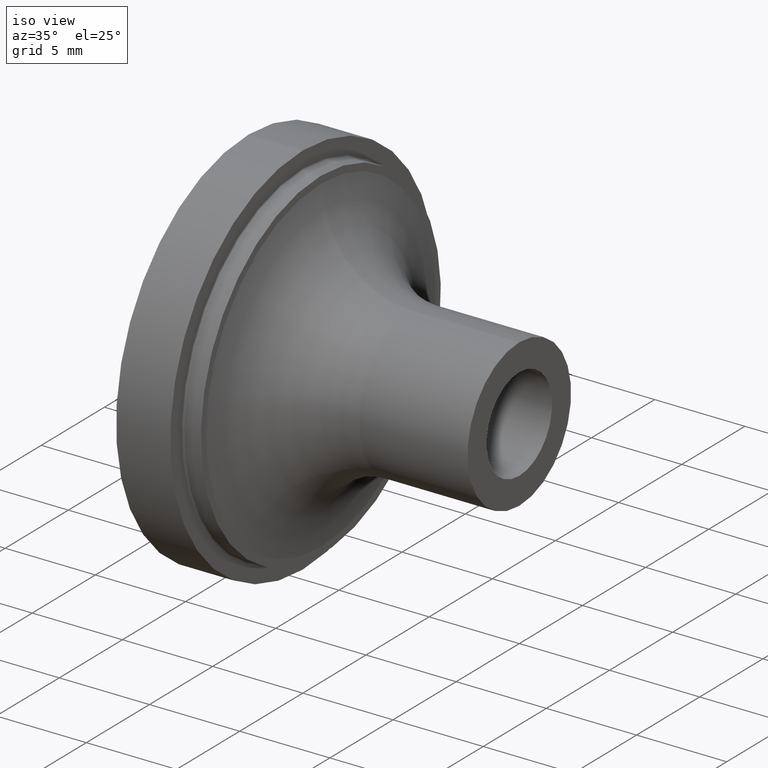
[diagram: clean part render]
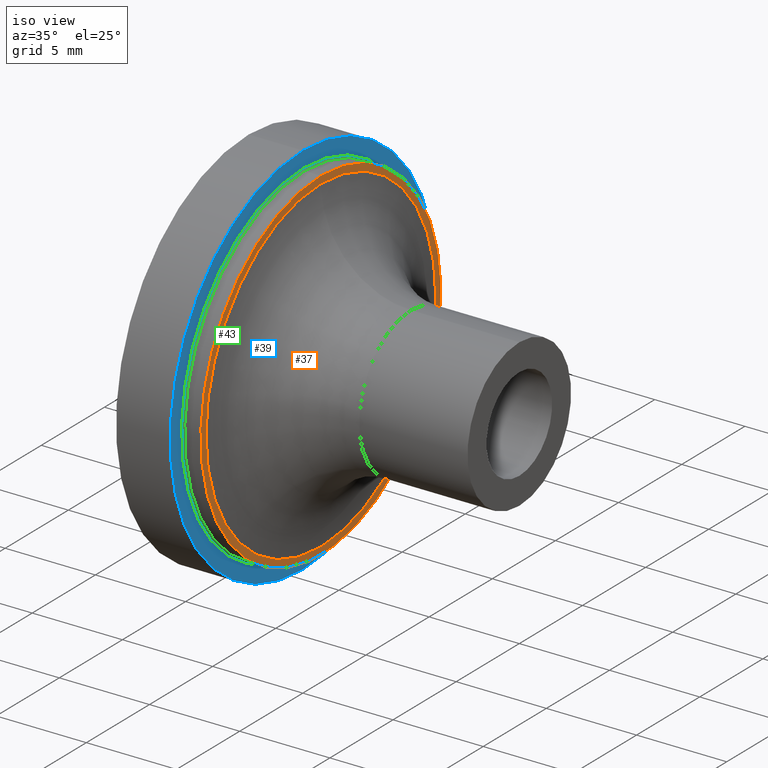
[diagram: same view with three faces highlighted in distinct colors, each labeled with its STEP entity id]
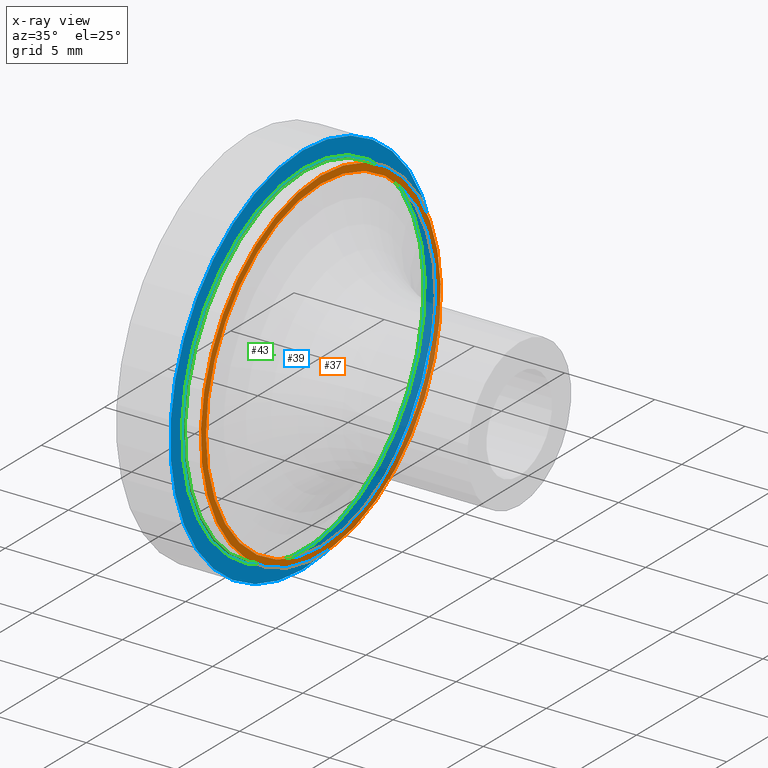
[diagram: x-ray of the same camera — body ghosted, the three highlighted faces saturated]
A machine part, iso view with three faces highlighted in distinct colors.
The next image is the same camera in x-ray (body ghosted, the three faces saturated) — at least one of them is partly hidden behind the body in this view.
Their STEP definitions:

[orange] entity #37 — the highlighted planar face has unit normal (-1, 0, 0).
#37 = ADVANCED_FACE( '', ( #80, #81 ), #82, .F. );
#80 = FACE_OUTER_BOUND( '', #139, .T. );
#81 = FACE_BOUND( '', #140, .T. );
#82 = PLANE( '', #141 );
#139 = EDGE_LOOP( '', ( #192 ) );
#140 = EDGE_LOOP( '', ( #193 ) );
#141 = AXIS2_PLACEMENT_3D( '', #194, #195, #196 );
#192 = ORIENTED_EDGE( '', *, *, #270, .F. );
#193 = ORIENTED_EDGE( '', *, *, #271, .T. );
#194 = CARTESIAN_POINT( '', ( 4.00000000000000, 0.000000000000000, 9.10000000000000 ) );
#195 = DIRECTION( '', ( -1.00000000000000, 0.000000000000000, 0.000000000000000 ) );
#196 = DIRECTION( '', ( 0.000000000000000, 0.000000000000000, 1.00000000000000 ) );
#270 = EDGE_CURVE( '', #296, #296, #297, .T. );
#271 = EDGE_CURVE( '', #298, #298, #299, .T. );
#296 = VERTEX_POINT( '', #335 );
#297 = CIRCLE( '', #336, 9.50000000000000 );
#298 = VERTEX_POINT( '', #337 );
#299 = CIRCLE( '', #338, 9.10000000000000 );
#335 = CARTESIAN_POINT( '', ( 4.00000000000000, 0.000000000000000, 9.50000000000000 ) );
#336 = AXIS2_PLACEMENT_3D( '', #373, #374, #375 );
#337 = CARTESIAN_POINT( '', ( 4.00000000000000, 0.000000000000000, 9.10000000000000 ) );
#338 = AXIS2_PLACEMENT_3D( '', #376, #377, #378 );
#373 = CARTESIAN_POINT( '', ( 4.00000000000000, 0.000000000000000, 0.000000000000000 ) );
#374 = DIRECTION( '', ( -1.00000000000000, 0.000000000000000, 0.000000000000000 ) );
#375 = DIRECTION( '', ( 0.000000000000000, 0.000000000000000, 1.00000000000000 ) );
#376 = CARTESIAN_POINT( '', ( 4.00000000000000, 0.000000000000000, 0.000000000000000 ) );
#377 = DIRECTION( '', ( -1.00000000000000, 0.000000000000000, 0.000000000000000 ) );
#378 = DIRECTION( '', ( 0.000000000000000, 0.000000000000000, 1.00000000000000 ) );

[blue] entity #39 — the highlighted planar face has unit normal (-1, 0, 0).
#39 = ADVANCED_FACE( '', ( #84, #85 ), #86, .F. );
#84 = FACE_OUTER_BOUND( '', #143, .T. );
#85 = FACE_BOUND( '', #144, .T. );
#86 = PLANE( '', #145 );
#143 = EDGE_LOOP( '', ( #198 ) );
#144 = EDGE_LOOP( '', ( #199 ) );
#145 = AXIS2_PLACEMENT_3D( '', #200, #201, #202 );
#198 = ORIENTED_EDGE( '', *, *, #273, .F. );
#199 = ORIENTED_EDGE( '', *, *, #274, .T. );
#200 = CARTESIAN_POINT( '', ( 3.00000000000000, 0.000000000000000, 9.50000000000000 ) );
#201 = DIRECTION( '', ( -1.00000000000000, 0.000000000000000, 0.000000000000000 ) );
#202 = DIRECTION( '', ( 0.000000000000000, 0.000000000000000, 1.00000000000000 ) );
#273 = EDGE_CURVE( '', #301, #301, #302, .T. );
#274 = EDGE_CURVE( '', #303, #303, #304, .T. );
#301 = VERTEX_POINT( '', #340 );
#302 = CIRCLE( '', #341, 10.5000000000000 );
#303 = VERTEX_POINT( '', #342 );
#304 = CIRCLE( '', #343, 9.60000000000000 );
#340 = CARTESIAN_POINT( '', ( 3.00000000000000, 0.000000000000000, 10.5000000000000 ) );
#341 = AXIS2_PLACEMENT_3D( '', #379, #380, #381 );
#342 = CARTESIAN_POINT( '', ( 3.00000000000000, 0.000000000000000, 9.60000000000000 ) );
#343 = AXIS2_PLACEMENT_3D( '', #382, #383, #384 );
#379 = CARTESIAN_POINT( '', ( 3.00000000000000, 0.000000000000000, 0.000000000000000 ) );
#380 = DIRECTION( '', ( -1.00000000000000, 0.000000000000000, 0.000000000000000 ) );
#381 = DIRECTION( '', ( 0.000000000000000, 0.000000000000000, 1.00000000000000 ) );
#382 = CARTESIAN_POINT( '', ( 3.00000000000000, 0.000000000000000, 0.000000000000000 ) );
#383 = DIRECTION( '', ( -1.00000000000000, 0.000000000000000, 0.000000000000000 ) );
#384 = DIRECTION( '', ( 0.000000000000000, 0.000000000000000, 1.00000000000000 ) );

[green] entity #43 — the highlighted toroidal blend (fillet) surface has major radius 9.6 mm and minor (blend) radius 0.1 mm.
#43 = ADVANCED_FACE( '', ( #92, #93 ), #94, .F. );
#92 = FACE_OUTER_BOUND( '', #151, .T. );
#93 = FACE_OUTER_BOUND( '', #152, .T. );
#94 = TOROIDAL_SURFACE( '', #153, 9.60000000000000, 0.100000000000000 );
#151 = EDGE_LOOP( '', ( #210 ) );
#152 = EDGE_LOOP( '', ( #211 ) );
#153 = AXIS2_PLACEMENT_3D( '', #212, #213, #214 );
#210 = ORIENTED_EDGE( '', *, *, #278, .F. );
#211 = ORIENTED_EDGE( '', *, *, #274, .F. );
#212 = CARTESIAN_POINT( '', ( 3.10000000000000, 0.000000000000000, 0.000000000000000 ) );
#213 = DIRECTION( '', ( -1.00000000000000, 0.000000000000000, 0.000000000000000 ) );
#214 = DIRECTION( '', ( 0.000000000000000, 0.000000000000000, 1.00000000000000 ) );
#274 = EDGE_CURVE( '', #303, #303, #304, .T. );
#278 = EDGE_CURVE( '', #309, #309, #310, .F. );
#303 = VERTEX_POINT( '', #342 );
#304 = CIRCLE( '', #343, 9.60000000000000 );
#309 = VERTEX_POINT( '', #348 );
#310 = CIRCLE( '', #349, 9.50000000000000 );
#342 = CARTESIAN_POINT( '', ( 3.00000000000000, 0.000000000000000, 9.60000000000000 ) );
#343 = AXIS2_PLACEMENT_3D( '', #382, #383, #384 );
#348 = CARTESIAN_POINT( '', ( 3.10000000000000, 0.000000000000000, 9.50000000000000 ) );
#349 = AXIS2_PLACEMENT_3D( '', #388, #389, #390 );
#382 = CARTESIAN_POINT( '', ( 3.00000000000000, 0.000000000000000, 0.000000000000000 ) );
#383 = DIRECTION( '', ( -1.00000000000000, 0.000000000000000, 0.000000000000000 ) );
#384 = DIRECTION( '', ( 0.000000000000000, 0.000000000000000, 1.00000000000000 ) );
#388 = CARTESIAN_POINT( '', ( 3.10000000000000, 0.000000000000000, 0.000000000000000 ) );
#389 = DIRECTION( '', ( -1.00000000000000, 0.000000000000000, 0.000000000000000 ) );
#390 = DIRECTION( '', ( 0.000000000000000, 0.000000000000000, 1.00000000000000 ) );